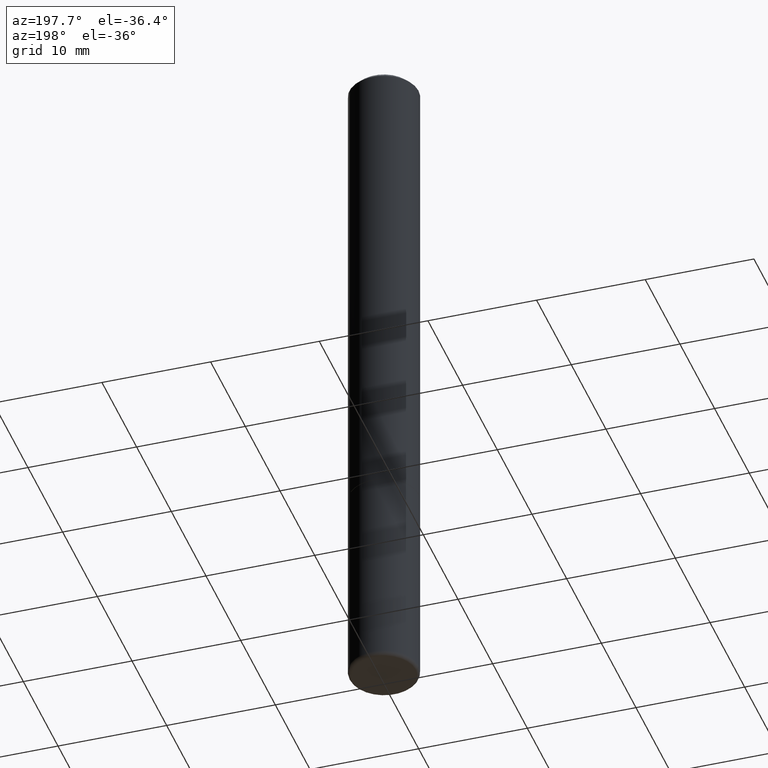
[diagram: clean part render]
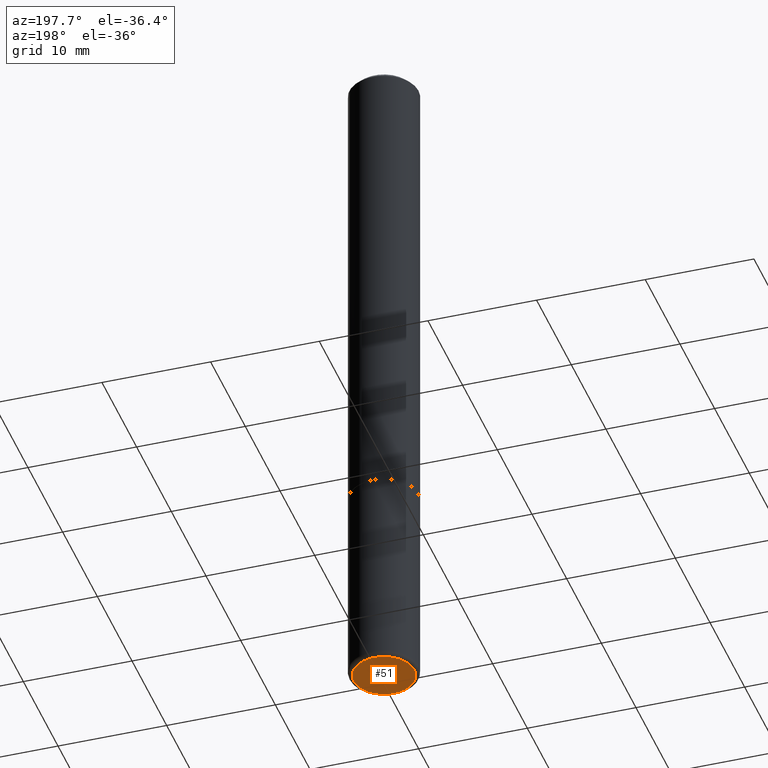
[diagram: same view with one face highlighted and labeled with its STEP entity id]
A machine part, auxiliary view. The second image highlights one B-rep face of the part: STEP entity #51.
In plain terms, the highlighted planar face has unit normal (0, -0, -1).
Its self-contained STEP definition (entity closure, byte-faithful):
#25 = CARTESIAN_POINT ( 'NONE',  ( 6.113672015462842613E-29, -8.728703347107864943E-15, -2.500000000000000000 ) ) ;
#49 = EDGE_LOOP ( 'NONE', ( #364, #307 ) ) ;
#51 = ADVANCED_FACE ( 'NONE', ( #138 ), #316, .T. ) ;
#95 = AXIS2_PLACEMENT_3D ( 'NONE', #25, #121, #415 ) ;
#106 = AXIS2_PLACEMENT_3D ( 'NONE', #418, #411, #190 ) ;
#120 = EDGE_CURVE ( 'NONE', #140, #368, #294, .T. ) ;
#121 = DIRECTION ( 'NONE',  ( -2.445468806185136597E-29, 3.491481338843145583E-15, 1.000000000000000000 ) ) ;
#134 = AXIS2_PLACEMENT_3D ( 'NONE', #253, #189, #347 ) ;
#138 = FACE_OUTER_BOUND ( 'NONE', #49, .T. ) ;
#140 = VERTEX_POINT ( 'NONE', #260 ) ;
#157 = CIRCLE ( 'NONE', #134, 0.1100000000000000006 ) ;
#189 = DIRECTION ( 'NONE',  ( -2.445468806185136597E-29, 3.491481338843145583E-15, 1.000000000000000000 ) ) ;
#190 = DIRECTION ( 'NONE',  ( -1.000000000000000000, 6.982962677686265922E-15, -4.876176775795935793E-29 ) ) ;
#253 = CARTESIAN_POINT ( 'NONE',  ( 6.113672015462842613E-29, -8.728703347107864943E-15, -2.500000000000000000 ) ) ;
#260 = CARTESIAN_POINT ( 'NONE',  ( 0.1100000000000000006, -9.496829241653354912E-15, -2.500000000000000000 ) ) ;
#265 = CARTESIAN_POINT ( 'NONE',  ( -0.1100000000000000006, -7.867629522548422746E-15, -2.500000000000000000 ) ) ;
#294 = CIRCLE ( 'NONE', #95, 0.1100000000000000006 ) ;
#307 = ORIENTED_EDGE ( 'NONE', *, *, #408, .F. ) ;
#316 = PLANE ( 'NONE',  #106 ) ;
#347 = DIRECTION ( 'NONE',  ( 1.000000000000000000, -6.982962677686270655E-15, 0.000000000000000000 ) ) ;
#364 = ORIENTED_EDGE ( 'NONE', *, *, #120, .F. ) ;
#368 = VERTEX_POINT ( 'NONE', #265 ) ;
#408 = EDGE_CURVE ( 'NONE', #368, #140, #157, .T. ) ;
#411 = DIRECTION ( 'NONE',  ( 2.438088387897960049E-29, -3.491481338843145188E-15, -1.000000000000000000 ) ) ;
#415 = DIRECTION ( 'NONE',  ( 1.000000000000000000, -6.982962677686270655E-15, 0.000000000000000000 ) ) ;
#418 = CARTESIAN_POINT ( 'NONE',  ( 6.113672015462842613E-29, -8.728703347107864943E-15, -2.500000000000000000 ) ) ;